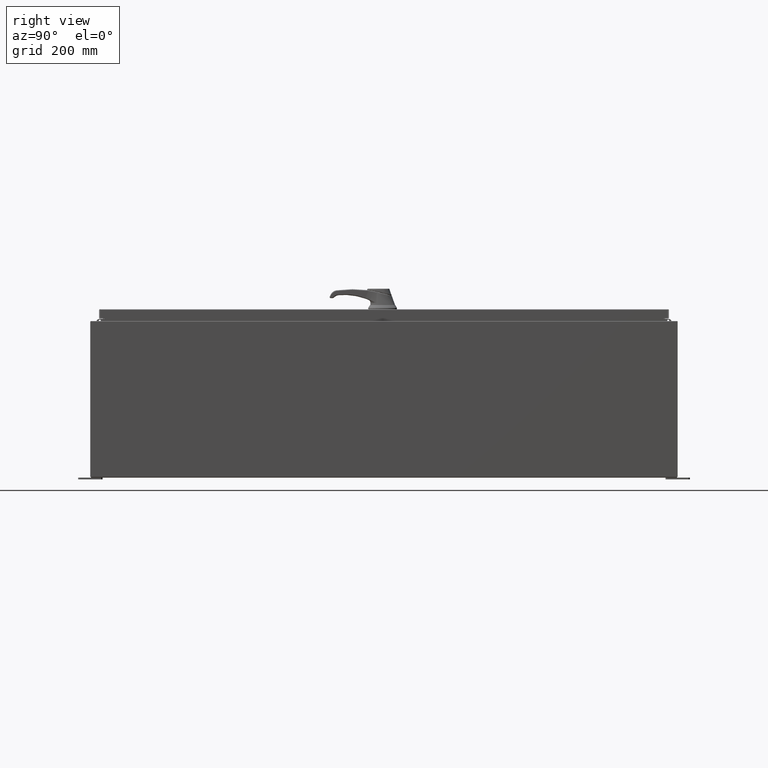
[diagram: clean part render]
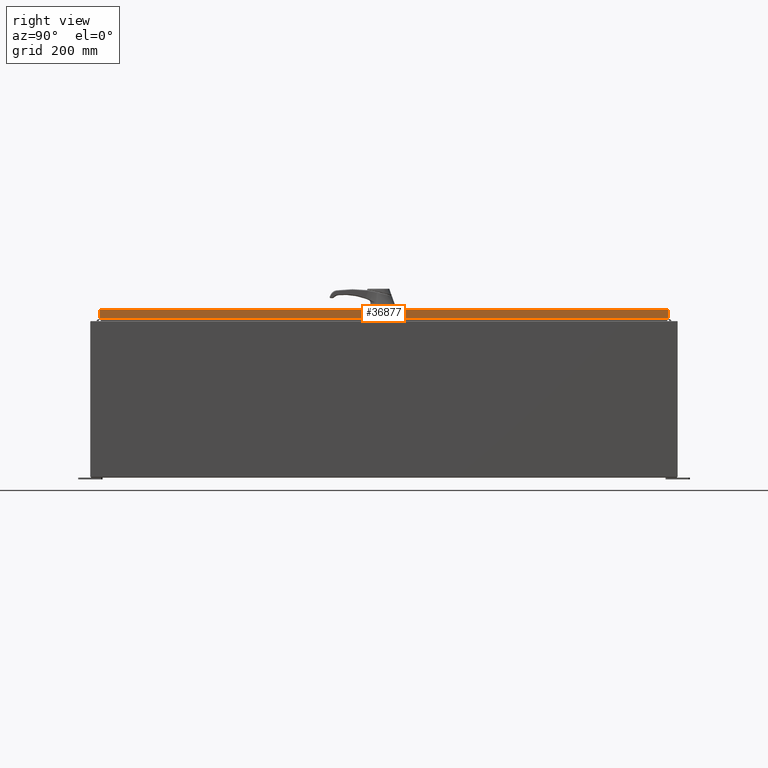
[diagram: same view with one face highlighted and labeled with its STEP entity id]
A machine part, right view. The second image highlights one B-rep face of the part: STEP entity #36877.
In plain terms, the highlighted planar face has unit normal (1, 0, 0).
Its self-contained STEP definition (entity closure, byte-faithful):
#1624 = DIRECTION ( 'NONE',  ( 0.0000000000000000000, -1.000000000000000000, 0.0000000000000000000 ) ) ;
#3604 = VECTOR ( 'NONE', #38800, 39.37007874015748100 ) ;
#13011 = EDGE_CURVE ( 'NONE', #58583, #19127, #139204, .T. ) ;
#19127 = VERTEX_POINT ( 'NONE', #100978 ) ;
#24993 = VECTOR ( 'NONE', #1624, 39.37007874015748100 ) ;
#30616 = DIRECTION ( 'NONE',  ( -2.532419924601866100E-015, -6.982962677686267500E-015, 1.000000000000000000 ) ) ;
#36877 = ADVANCED_FACE ( 'NONE', ( #65063 ), #48763, .T. ) ;
#38800 = DIRECTION ( 'NONE',  ( 0.0000000000000000000, -1.000000000000000000, 0.0000000000000000000 ) ) ;
#41254 = CARTESIAN_POINT ( 'NONE',  ( 17.07800000000000300, 29.00515786437626500, 2.460514159557000400E-013 ) ) ;
#41786 = VECTOR ( 'NONE', #52696, 39.37007874015748100 ) ;
#42967 = EDGE_LOOP ( 'NONE', ( #67439, #134098, #91716, #56489 ) ) ;
#47285 = VERTEX_POINT ( 'NONE', #76555 ) ;
#48763 = PLANE ( 'NONE',  #54098 ) ;
#52696 = DIRECTION ( 'NONE',  ( -2.532419924601866100E-015, -6.982962677686267500E-015, 1.000000000000000000 ) ) ;
#54098 = AXIS2_PLACEMENT_3D ( 'NONE', #103933, #59838, #137325 ) ;
#56489 = ORIENTED_EDGE ( 'NONE', *, *, #101389, .T. ) ;
#58583 = VERTEX_POINT ( 'NONE', #142348 ) ;
#59838 = DIRECTION ( 'NONE',  ( 1.000000000000000000, 0.0000000000000000000, 2.532419924601866100E-015 ) ) ;
#59972 = EDGE_CURVE ( 'NONE', #58583, #47285, #124802, .T. ) ;
#65063 = FACE_OUTER_BOUND ( 'NONE', #42967, .T. ) ;
#65888 = VECTOR ( 'NONE', #30616, 39.37007874015748100 ) ;
#67439 = ORIENTED_EDGE ( 'NONE', *, *, #110640, .F. ) ;
#70304 = VERTEX_POINT ( 'NONE', #102288 ) ;
#76555 = CARTESIAN_POINT ( 'NONE',  ( 17.07800000000000300, 29.00515786437626500, -0.08770000000000008300 ) ) ;
#91716 = ORIENTED_EDGE ( 'NONE', *, *, #59972, .T. ) ;
#100978 = CARTESIAN_POINT ( 'NONE',  ( 17.07800000000000700, -29.00515786437626200, -0.9376999999999996400 ) ) ;
#101389 = EDGE_CURVE ( 'NONE', #47285, #70304, #117682, .T. ) ;
#102288 = CARTESIAN_POINT ( 'NONE',  ( 17.07800000000000300, -29.00515786437626500, -0.08770000000000008300 ) ) ;
#103933 = CARTESIAN_POINT ( 'NONE',  ( 17.07800000000000300, 0.0000000000000000000, 4.350948112836225500E-014 ) ) ;
#110640 = EDGE_CURVE ( 'NONE', #19127, #70304, #130065, .T. ) ;
#117682 = LINE ( 'NONE', #126800, #3604 ) ;
#124802 = LINE ( 'NONE', #41254, #65888 ) ;
#126800 = CARTESIAN_POINT ( 'NONE',  ( 17.07800000000000300, 0.0000000000000000000, -0.08770000000000008300 ) ) ;
#130065 = LINE ( 'NONE', #130125, #41786 ) ;
#130125 = CARTESIAN_POINT ( 'NONE',  ( 17.07800000000000300, -29.00515786437626500, -0.07469999999999980800 ) ) ;
#134090 = CARTESIAN_POINT ( 'NONE',  ( 17.07800000000000700, -29.09400000000000100, -0.9376999999999997600 ) ) ;
#134098 = ORIENTED_EDGE ( 'NONE', *, *, #13011, .F. ) ;
#137325 = DIRECTION ( 'NONE',  ( 2.532419924601866100E-015, 0.0000000000000000000, -1.000000000000000000 ) ) ;
#139204 = LINE ( 'NONE', #134090, #24993 ) ;
#142348 = CARTESIAN_POINT ( 'NONE',  ( 17.07800000000000700, 29.00515786437626500, -0.9376999999999997600 ) ) ;